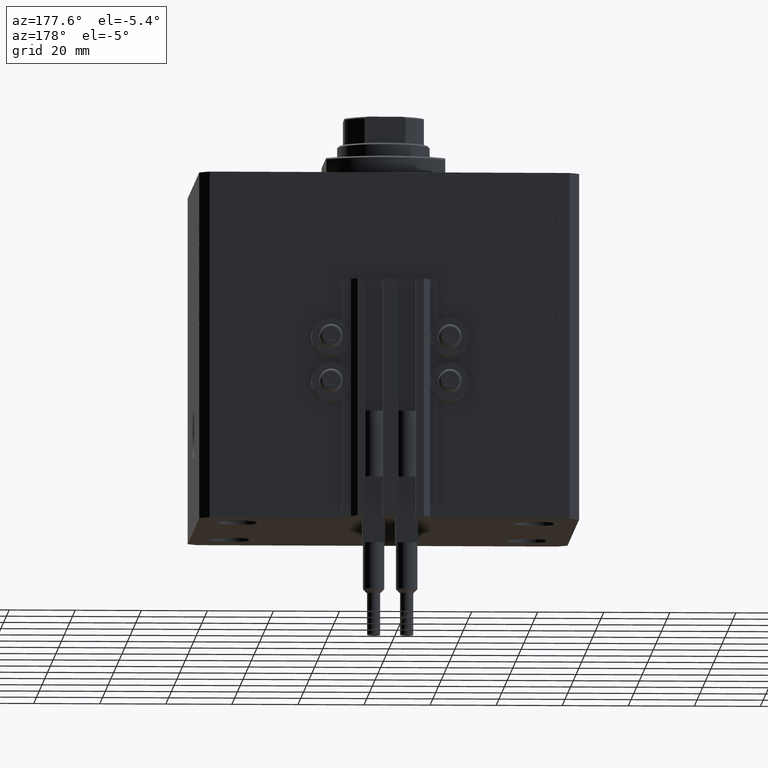
[diagram: clean part render]
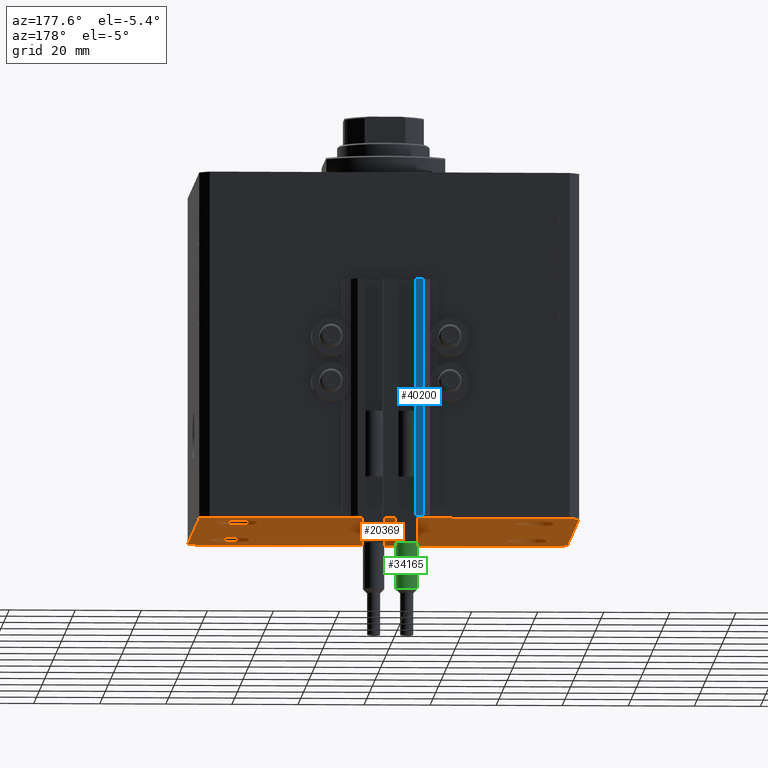
[diagram: same view with three faces highlighted in distinct colors, each labeled with its STEP entity id]
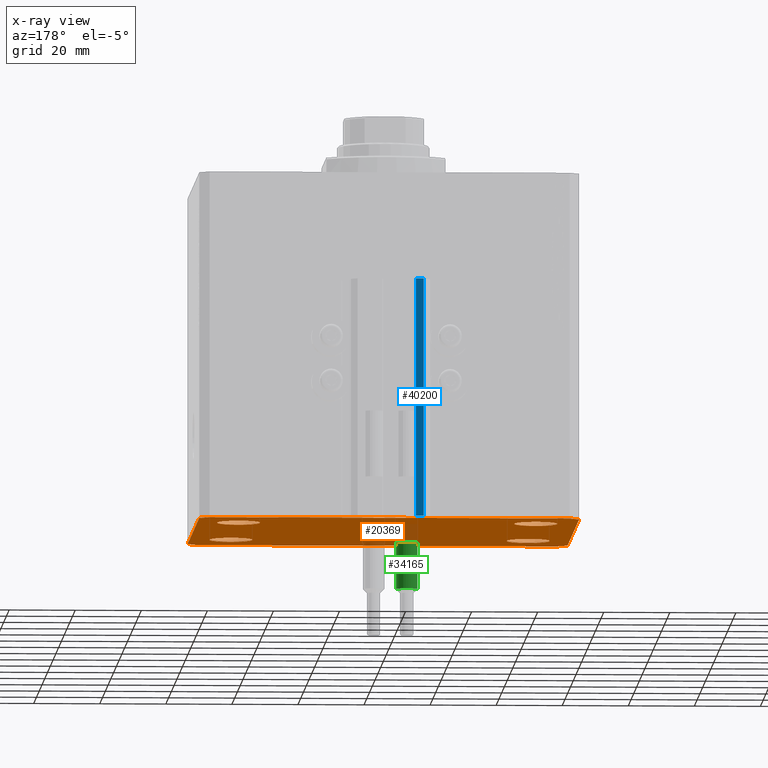
[diagram: x-ray of the same camera — body ghosted, the three highlighted faces saturated]
A machine part, auxiliary view with three faces highlighted in distinct colors.
The next image is the same camera in x-ray (body ghosted, the three faces saturated) — at least one of them is partly hidden behind the body in this view.
Their STEP definitions:

[orange] entity #20369 — the highlighted planar face has unit normal (0, 0, 1).
#649 = CIRCLE ( 'NONE', #22397, 6.499999999999999112 ) ;
#689 = VERTEX_POINT ( 'NONE', #3600 ) ;
#905 = VECTOR ( 'NONE', #27359, 1000.000000000000000 ) ;
#933 = VERTEX_POINT ( 'NONE', #44760 ) ;
#1782 = LINE ( 'NONE', #35787, #29300 ) ;
#2308 = VERTEX_POINT ( 'NONE', #40476 ) ;
#2411 = DIRECTION ( 'NONE',  ( -0.000000000000000000, -0.000000000000000000, -1.000000000000000000 ) ) ;
#2746 = DIRECTION ( 'NONE',  ( -1.000000000000000000, -2.546383084002638829E-16, 0.000000000000000000 ) ) ;
#2833 = DIRECTION ( 'NONE',  ( -0.7071067811865369146, 0.7071067811865581199, 0.000000000000000000 ) ) ;
#3341 = DIRECTION ( 'NONE',  ( 1.000000000000000000, 1.273191542001326317E-16, 0.000000000000000000 ) ) ;
#3399 = CARTESIAN_POINT ( 'NONE',  ( -54.49999999999999289, 45.00000000000000000, -105.0000000000000000 ) ) ;
#3600 = CARTESIAN_POINT ( 'NONE',  ( 57.50000000000055422, 41.99999999999997868, -105.0000000000000000 ) ) ;
#3942 = FACE_BOUND ( 'NONE', #27460, .T. ) ;
#4056 = CARTESIAN_POINT ( 'NONE',  ( -54.50000000000000711, -45.00000000000000000, -105.0000000000000000 ) ) ;
#4071 = EDGE_CURVE ( 'NONE', #42867, #18524, #10925, .T. ) ;
#4172 = VERTEX_POINT ( 'NONE', #41011 ) ;
#4384 = CARTESIAN_POINT ( 'NONE',  ( 51.50000000000000000, 27.49999999999999289, -105.0000000000000000 ) ) ;
#5007 = ORIENTED_EDGE ( 'NONE', *, *, #38904, .F. ) ;
#5122 = CARTESIAN_POINT ( 'NONE',  ( -57.50000000000000711, -42.00000000000000711, -105.0000000000000000 ) ) ;
#5576 = DIRECTION ( 'NONE',  ( 1.000000000000000000, 0.000000000000000000, 0.000000000000000000 ) ) ;
#5982 = ORIENTED_EDGE ( 'NONE', *, *, #36238, .F. ) ;
#6078 = CIRCLE ( 'NONE', #30913, 6.499999999999999112 ) ;
#6098 = EDGE_CURVE ( 'NONE', #933, #20827, #39494, .T. ) ;
#6519 = EDGE_CURVE ( 'NONE', #15836, #47928, #13359, .T. ) ;
#6578 = DIRECTION ( 'NONE',  ( -0.7071067811865483499, -0.7071067811865466846, 0.000000000000000000 ) ) ;
#6706 = ORIENTED_EDGE ( 'NONE', *, *, #4071, .F. ) ;
#7108 = PLANE ( 'NONE',  #19513 ) ;
#7572 = DIRECTION ( 'NONE',  ( 1.000000000000000000, 0.000000000000000000, 0.000000000000000000 ) ) ;
#7632 = CIRCLE ( 'NONE', #34780, 6.499999999999999112 ) ;
#8060 = FACE_BOUND ( 'NONE', #26869, .T. ) ;
#8914 = CIRCLE ( 'NONE', #32219, 6.499999999999999112 ) ;
#9060 = VERTEX_POINT ( 'NONE', #24660 ) ;
#10397 = ORIENTED_EDGE ( 'NONE', *, *, #31570, .F. ) ;
#10560 = ORIENTED_EDGE ( 'NONE', *, *, #6519, .F. ) ;
#10925 = CIRCLE ( 'NONE', #38080, 6.499999999999999112 ) ;
#11130 = DIRECTION ( 'NONE',  ( 1.000000000000000000, 0.000000000000000000, 0.000000000000000000 ) ) ;
#11470 = FACE_BOUND ( 'NONE', #43517, .T. ) ;
#12171 = DIRECTION ( 'NONE',  ( -0.000000000000000000, -0.000000000000000000, -1.000000000000000000 ) ) ;
#12376 = CARTESIAN_POINT ( 'NONE',  ( 44.99999999999998579, -27.50000000000000355, -105.0000000000000000 ) ) ;
#12461 = EDGE_CURVE ( 'NONE', #689, #2308, #13770, .T. ) ;
#12739 = DIRECTION ( 'NONE',  ( -0.000000000000000000, -0.000000000000000000, -1.000000000000000000 ) ) ;
#13305 = VERTEX_POINT ( 'NONE', #4384 ) ;
#13359 = CIRCLE ( 'NONE', #34293, 6.499999999999999112 ) ;
#13411 = ORIENTED_EDGE ( 'NONE', *, *, #36681, .F. ) ;
#13740 = CARTESIAN_POINT ( 'NONE',  ( -38.50000000000000000, 27.49999999999999645, -105.0000000000000000 ) ) ;
#13744 = EDGE_CURVE ( 'NONE', #18524, #42867, #8914, .T. ) ;
#13770 = LINE ( 'NONE', #39529, #40690 ) ;
#15351 = DIRECTION ( 'NONE',  ( 0.000000000000000000, 0.000000000000000000, 1.000000000000000000 ) ) ;
#15369 = CARTESIAN_POINT ( 'NONE',  ( 38.50000000000000000, 27.49999999999999289, -105.0000000000000000 ) ) ;
#15836 = VERTEX_POINT ( 'NONE', #28430 ) ;
#16257 = DIRECTION ( 'NONE',  ( 1.000000000000000000, 0.000000000000000000, 0.000000000000000000 ) ) ;
#17125 = DIRECTION ( 'NONE',  ( -0.000000000000000000, -0.000000000000000000, -1.000000000000000000 ) ) ;
#18394 = EDGE_CURVE ( 'NONE', #2308, #32443, #1782, .T. ) ;
#18524 = VERTEX_POINT ( 'NONE', #44908 ) ;
#19513 = AXIS2_PLACEMENT_3D ( 'NONE', #36510, #15351, #47909 ) ;
#19608 = CARTESIAN_POINT ( 'NONE',  ( 57.50000000000000711, -41.99999999999998579, -105.0000000000000000 ) ) ;
#19933 = DIRECTION ( 'NONE',  ( 0.7071067811865491270, -0.7071067811865459074, 0.000000000000000000 ) ) ;
#20214 = EDGE_CURVE ( 'NONE', #38850, #4172, #46718, .T. ) ;
#20281 = ORIENTED_EDGE ( 'NONE', *, *, #13744, .F. ) ;
#20369 = ADVANCED_FACE ( 'NONE', ( #3942, #11470, #8060, #40391, #26528 ), #7108, .F. ) ;
#20767 = CARTESIAN_POINT ( 'NONE',  ( -44.99999999999998579, -27.50000000000000355, -105.0000000000000000 ) ) ;
#20827 = VERTEX_POINT ( 'NONE', #31568 ) ;
#20871 = CARTESIAN_POINT ( 'NONE',  ( 44.99999999999998579, -27.50000000000000355, -105.0000000000000000 ) ) ;
#21460 = CARTESIAN_POINT ( 'NONE',  ( 54.50000000000000711, -44.99999999999998579, -105.0000000000000000 ) ) ;
#21861 = LINE ( 'NONE', #36687, #34149 ) ;
#22142 = ORIENTED_EDGE ( 'NONE', *, *, #32039, .F. ) ;
#22397 = AXIS2_PLACEMENT_3D ( 'NONE', #44188, #30352, #37147 ) ;
#23236 = VECTOR ( 'NONE', #28532, 1000.000000000000000 ) ;
#23279 = EDGE_CURVE ( 'NONE', #43404, #36441, #24311, .T. ) ;
#23457 = EDGE_LOOP ( 'NONE', ( #45654, #10560 ) ) ;
#23565 = DIRECTION ( 'NONE',  ( -0.000000000000000000, -0.000000000000000000, -1.000000000000000000 ) ) ;
#24311 = CIRCLE ( 'NONE', #30531, 6.499999999999999112 ) ;
#24660 = CARTESIAN_POINT ( 'NONE',  ( -54.50000000000000711, -45.00000000000000000, -105.0000000000000000 ) ) ;
#24855 = DIRECTION ( 'NONE',  ( -0.000000000000000000, -0.000000000000000000, -1.000000000000000000 ) ) ;
#25683 = LINE ( 'NONE', #4056, #46410 ) ;
#25803 = DIRECTION ( 'NONE',  ( 1.000000000000000000, 0.000000000000000000, 0.000000000000000000 ) ) ;
#26045 = CARTESIAN_POINT ( 'NONE',  ( 45.00000000000000000, 27.49999999999999289, -105.0000000000000000 ) ) ;
#26528 = FACE_OUTER_BOUND ( 'NONE', #46039, .T. ) ;
#26645 = ORIENTED_EDGE ( 'NONE', *, *, #37499, .F. ) ;
#26869 = EDGE_LOOP ( 'NONE', ( #22142, #26645 ) ) ;
#26985 = ORIENTED_EDGE ( 'NONE', *, *, #12461, .F. ) ;
#27074 = CARTESIAN_POINT ( 'NONE',  ( -38.49999999999998579, -27.50000000000000355, -105.0000000000000000 ) ) ;
#27283 = ORIENTED_EDGE ( 'NONE', *, *, #20214, .F. ) ;
#27359 = DIRECTION ( 'NONE',  ( -2.478176394252581141E-16, -1.000000000000000000, 0.000000000000000000 ) ) ;
#27460 = EDGE_LOOP ( 'NONE', ( #6706, #20281 ) ) ;
#28430 = CARTESIAN_POINT ( 'NONE',  ( -51.50000000000000000, 27.49999999999999645, -105.0000000000000000 ) ) ;
#28532 = DIRECTION ( 'NONE',  ( 6.443258625056715108E-15, 1.000000000000000000, 0.000000000000000000 ) ) ;
#29300 = VECTOR ( 'NONE', #2746, 1000.000000000000000 ) ;
#29396 = EDGE_CURVE ( 'NONE', #32443, #933, #21861, .T. ) ;
#29596 = CARTESIAN_POINT ( 'NONE',  ( 54.50000000000000711, -44.99999999999998579, -105.0000000000000000 ) ) ;
#30352 = DIRECTION ( 'NONE',  ( -0.000000000000000000, -0.000000000000000000, -1.000000000000000000 ) ) ;
#30531 = AXIS2_PLACEMENT_3D ( 'NONE', #12376, #23565, #16257 ) ;
#30913 = AXIS2_PLACEMENT_3D ( 'NONE', #20871, #2411, #5576 ) ;
#31060 = VERTEX_POINT ( 'NONE', #15369 ) ;
#31522 = CARTESIAN_POINT ( 'NONE',  ( 38.49999999999998579, -27.50000000000000355, -105.0000000000000000 ) ) ;
#31555 = ORIENTED_EDGE ( 'NONE', *, *, #6098, .F. ) ;
#31568 = CARTESIAN_POINT ( 'NONE',  ( -57.50000000000000711, -42.00000000000000711, -105.0000000000000000 ) ) ;
#31570 = EDGE_CURVE ( 'NONE', #36441, #43404, #6078, .T. ) ;
#31963 = DIRECTION ( 'NONE',  ( 1.000000000000000000, 0.000000000000000000, 0.000000000000000000 ) ) ;
#32039 = EDGE_CURVE ( 'NONE', #13305, #31060, #7632, .T. ) ;
#32219 = AXIS2_PLACEMENT_3D ( 'NONE', #20767, #17125, #31963 ) ;
#32443 = VERTEX_POINT ( 'NONE', #3399 ) ;
#34007 = VECTOR ( 'NONE', #19933, 1000.000000000000114 ) ;
#34149 = VECTOR ( 'NONE', #6578, 1000.000000000000000 ) ;
#34293 = AXIS2_PLACEMENT_3D ( 'NONE', #36496, #24855, #25803 ) ;
#34762 = CARTESIAN_POINT ( 'NONE',  ( 45.00000000000000000, 27.49999999999999289, -105.0000000000000000 ) ) ;
#34780 = AXIS2_PLACEMENT_3D ( 'NONE', #26045, #40854, #7572 ) ;
#34989 = LINE ( 'NONE', #5122, #34007 ) ;
#35787 = CARTESIAN_POINT ( 'NONE',  ( 54.50000000000059686, 45.00000000000002842, -105.0000000000000000 ) ) ;
#35861 = ORIENTED_EDGE ( 'NONE', *, *, #23279, .F. ) ;
#36238 = EDGE_CURVE ( 'NONE', #20827, #9060, #34989, .T. ) ;
#36360 = EDGE_CURVE ( 'NONE', #47928, #15836, #649, .T. ) ;
#36441 = VERTEX_POINT ( 'NONE', #37622 ) ;
#36496 = CARTESIAN_POINT ( 'NONE',  ( -45.00000000000000000, 27.49999999999999645, -105.0000000000000000 ) ) ;
#36510 = CARTESIAN_POINT ( 'NONE',  ( 0.000000000000000000, 0.000000000000000000, -105.0000000000000000 ) ) ;
#36681 = EDGE_CURVE ( 'NONE', #9060, #38850, #25683, .T. ) ;
#36687 = CARTESIAN_POINT ( 'NONE',  ( -54.49999999999999289, 45.00000000000000000, -105.0000000000000000 ) ) ;
#37147 = DIRECTION ( 'NONE',  ( 1.000000000000000000, 0.000000000000000000, 0.000000000000000000 ) ) ;
#37499 = EDGE_CURVE ( 'NONE', #31060, #13305, #41803, .T. ) ;
#37622 = CARTESIAN_POINT ( 'NONE',  ( 51.49999999999998579, -27.50000000000000355, -105.0000000000000000 ) ) ;
#37924 = AXIS2_PLACEMENT_3D ( 'NONE', #34762, #12171, #39137 ) ;
#38080 = AXIS2_PLACEMENT_3D ( 'NONE', #44636, #12739, #11130 ) ;
#38550 = ORIENTED_EDGE ( 'NONE', *, *, #29396, .F. ) ;
#38850 = VERTEX_POINT ( 'NONE', #29596 ) ;
#38904 = EDGE_CURVE ( 'NONE', #4172, #689, #46972, .T. ) ;
#39137 = DIRECTION ( 'NONE',  ( 1.000000000000000000, 0.000000000000000000, 0.000000000000000000 ) ) ;
#39494 = LINE ( 'NONE', #46048, #905 ) ;
#39529 = CARTESIAN_POINT ( 'NONE',  ( 57.50000000000055422, 41.99999999999997868, -105.0000000000000000 ) ) ;
#40391 = FACE_BOUND ( 'NONE', #23457, .T. ) ;
#40476 = CARTESIAN_POINT ( 'NONE',  ( 54.50000000000059686, 45.00000000000002842, -105.0000000000000000 ) ) ;
#40690 = VECTOR ( 'NONE', #2833, 1000.000000000000000 ) ;
#40854 = DIRECTION ( 'NONE',  ( -0.000000000000000000, -0.000000000000000000, -1.000000000000000000 ) ) ;
#41011 = CARTESIAN_POINT ( 'NONE',  ( 57.50000000000000711, -41.99999999999998579, -105.0000000000000000 ) ) ;
#41327 = ORIENTED_EDGE ( 'NONE', *, *, #18394, .F. ) ;
#41803 = CIRCLE ( 'NONE', #37924, 6.499999999999999112 ) ;
#42867 = VERTEX_POINT ( 'NONE', #27074 ) ;
#43404 = VERTEX_POINT ( 'NONE', #31522 ) ;
#43517 = EDGE_LOOP ( 'NONE', ( #10397, #35861 ) ) ;
#43794 = DIRECTION ( 'NONE',  ( 0.7071067811865483499, 0.7071067811865466846, 0.000000000000000000 ) ) ;
#44188 = CARTESIAN_POINT ( 'NONE',  ( -45.00000000000000000, 27.49999999999999645, -105.0000000000000000 ) ) ;
#44636 = CARTESIAN_POINT ( 'NONE',  ( -44.99999999999998579, -27.50000000000000355, -105.0000000000000000 ) ) ;
#44760 = CARTESIAN_POINT ( 'NONE',  ( -57.49999999999998579, 42.00000000000000711, -105.0000000000000000 ) ) ;
#44908 = CARTESIAN_POINT ( 'NONE',  ( -51.49999999999998579, -27.50000000000000355, -105.0000000000000000 ) ) ;
#45654 = ORIENTED_EDGE ( 'NONE', *, *, #36360, .F. ) ;
#45889 = VECTOR ( 'NONE', #43794, 1000.000000000000000 ) ;
#46039 = EDGE_LOOP ( 'NONE', ( #41327, #26985, #5007, #27283, #13411, #5982, #31555, #38550 ) ) ;
#46048 = CARTESIAN_POINT ( 'NONE',  ( -57.49999999999998579, 42.00000000000000711, -105.0000000000000000 ) ) ;
#46410 = VECTOR ( 'NONE', #3341, 1000.000000000000000 ) ;
#46718 = LINE ( 'NONE', #21460, #45889 ) ;
#46972 = LINE ( 'NONE', #19608, #23236 ) ;
#47909 = DIRECTION ( 'NONE',  ( 1.000000000000000000, 0.000000000000000000, -0.000000000000000000 ) ) ;
#47928 = VERTEX_POINT ( 'NONE', #13740 ) ;

[blue] entity #40200 — the highlighted planar face has unit normal (0, 1, 0).
#2010 = DIRECTION ( 'NONE',  ( -1.000000000000000000, 0.000000000000000000, 0.000000000000000000 ) ) ;
#2512 = LINE ( 'NONE', #47436, #22402 ) ;
#5712 = DIRECTION ( 'NONE',  ( 0.000000000000000000, 1.000000000000000000, -0.000000000000000000 ) ) ;
#6157 = DIRECTION ( 'NONE',  ( -1.000000000000000000, 0.000000000000000000, 0.000000000000000000 ) ) ;
#6850 = VERTEX_POINT ( 'NONE', #11540 ) ;
#7567 = VERTEX_POINT ( 'NONE', #30616 ) ;
#11540 = CARTESIAN_POINT ( 'NONE',  ( -10.00000000000000000, 52.99999999999999289, -105.0000000000000000 ) ) ;
#11700 = CARTESIAN_POINT ( 'NONE',  ( -7.650000000000002132, 52.99999999999999289, -33.00000000000000000 ) ) ;
#11781 = EDGE_CURVE ( 'NONE', #7567, #19569, #28642, .T. ) ;
#11816 = CARTESIAN_POINT ( 'NONE',  ( -7.650000000000002132, 52.99999999999999289, -105.0000000000000000 ) ) ;
#14302 = VECTOR ( 'NONE', #21103, 1000.000000000000000 ) ;
#15035 = CARTESIAN_POINT ( 'NONE',  ( -10.00000000000000000, 52.99999999999999289, -105.0000000000000000 ) ) ;
#15712 = ORIENTED_EDGE ( 'NONE', *, *, #16121, .T. ) ;
#16121 = EDGE_CURVE ( 'NONE', #6850, #29907, #44653, .T. ) ;
#16871 = DIRECTION ( 'NONE',  ( 0.000000000000000000, 0.000000000000000000, 1.000000000000000000 ) ) ;
#19569 = VERTEX_POINT ( 'NONE', #11700 ) ;
#21103 = DIRECTION ( 'NONE',  ( 0.000000000000000000, 0.000000000000000000, 1.000000000000000000 ) ) ;
#22402 = VECTOR ( 'NONE', #6157, 1000.000000000000000 ) ;
#22690 = ORIENTED_EDGE ( 'NONE', *, *, #32885, .F. ) ;
#23028 = DIRECTION ( 'NONE',  ( 0.000000000000000000, 0.000000000000000000, 1.000000000000000000 ) ) ;
#27810 = FACE_OUTER_BOUND ( 'NONE', #29583, .T. ) ;
#28311 = CARTESIAN_POINT ( 'NONE',  ( -7.650000000000002132, 52.99999999999999289, -105.0000000000000000 ) ) ;
#28642 = LINE ( 'NONE', #43428, #14302 ) ;
#29538 = CARTESIAN_POINT ( 'NONE',  ( -10.00000000000000000, 52.99999999999999289, -33.00000000000000000 ) ) ;
#29583 = EDGE_LOOP ( 'NONE', ( #22690, #39174, #31482, #15712 ) ) ;
#29907 = VERTEX_POINT ( 'NONE', #29538 ) ;
#30616 = CARTESIAN_POINT ( 'NONE',  ( -7.650000000000002132, 52.99999999999999289, -105.0000000000000000 ) ) ;
#31482 = ORIENTED_EDGE ( 'NONE', *, *, #35993, .T. ) ;
#32885 = EDGE_CURVE ( 'NONE', #19569, #29907, #2512, .T. ) ;
#35059 = LINE ( 'NONE', #11816, #36348 ) ;
#35993 = EDGE_CURVE ( 'NONE', #7567, #6850, #35059, .T. ) ;
#36348 = VECTOR ( 'NONE', #2010, 1000.000000000000000 ) ;
#39174 = ORIENTED_EDGE ( 'NONE', *, *, #11781, .F. ) ;
#40200 = ADVANCED_FACE ( 'NONE', ( #27810 ), #46742, .T. ) ;
#42420 = VECTOR ( 'NONE', #23028, 1000.000000000000000 ) ;
#43428 = CARTESIAN_POINT ( 'NONE',  ( -7.650000000000002132, 52.99999999999999289, -105.0000000000000000 ) ) ;
#44195 = AXIS2_PLACEMENT_3D ( 'NONE', #28311, #5712, #16871 ) ;
#44653 = LINE ( 'NONE', #15035, #42420 ) ;
#46742 = PLANE ( 'NONE',  #44195 ) ;
#47436 = CARTESIAN_POINT ( 'NONE',  ( -7.650000000000002132, 52.99999999999999289, -33.00000000000000000 ) ) ;

[green] entity #34165 — the highlighted cylindrical surface (edge-blend (fillet) strip) has radius 3.25 mm, axis along (-0, -0, 1).
#487 = CARTESIAN_POINT ( 'NONE',  ( 0.000000000000000000, 0.000000000000000000, 40.00000000000000000 ) ) ;
#1112 = DIRECTION ( 'NONE',  ( 1.000000000000000000, 0.000000000000000000, 0.000000000000000000 ) ) ;
#1345 = VERTEX_POINT ( 'NONE', #20507 ) ;
#1358 = DIRECTION ( 'NONE',  ( 0.000000000000000000, 0.000000000000000000, 1.000000000000000000 ) ) ;
#1381 = AXIS2_PLACEMENT_3D ( 'NONE', #28411, #46849, #42966 ) ;
#1462 = VERTEX_POINT ( 'NONE', #47922 ) ;
#3432 = CARTESIAN_POINT ( 'NONE',  ( 2.883140648667699146, -1.500000000000000000, 40.00000000000000000 ) ) ;
#4662 = VERTEX_POINT ( 'NONE', #3432 ) ;
#4666 = CIRCLE ( 'NONE', #6242, 3.250000000000000444 ) ;
#4825 = AXIS2_PLACEMENT_3D ( 'NONE', #26391, #5008, #1112 ) ;
#4943 = LINE ( 'NONE', #42090, #15959 ) ;
#5008 = DIRECTION ( 'NONE',  ( 0.000000000000000000, 0.000000000000000000, -1.000000000000000000 ) ) ;
#6014 = LINE ( 'NONE', #46813, #17454 ) ;
#6242 = AXIS2_PLACEMENT_3D ( 'NONE', #12443, #16084, #27994 ) ;
#7473 = CARTESIAN_POINT ( 'NONE',  ( -2.883140648667699146, -1.500000000000000000, 40.00000000000000000 ) ) ;
#8403 = CARTESIAN_POINT ( 'NONE',  ( 0.000000000000000000, 0.000000000000000000, 40.00000000000000000 ) ) ;
#9946 = ORIENTED_EDGE ( 'NONE', *, *, #13433, .T. ) ;
#10411 = VERTEX_POINT ( 'NONE', #19708 ) ;
#10415 = FACE_OUTER_BOUND ( 'NONE', #15573, .T. ) ;
#12443 = CARTESIAN_POINT ( 'NONE',  ( 0.000000000000000000, 0.000000000000000000, 40.00000000000000000 ) ) ;
#13433 = EDGE_CURVE ( 'NONE', #1345, #10411, #6014, .T. ) ;
#15307 = DIRECTION ( 'NONE',  ( 1.000000000000000000, 0.000000000000000000, 0.000000000000000000 ) ) ;
#15573 = EDGE_LOOP ( 'NONE', ( #16947, #21913, #9946, #26020, #29640, #46012 ) ) ;
#15959 = VECTOR ( 'NONE', #23875, 1000.000000000000000 ) ;
#16084 = DIRECTION ( 'NONE',  ( 0.000000000000000000, 0.000000000000000000, 1.000000000000000000 ) ) ;
#16181 = AXIS2_PLACEMENT_3D ( 'NONE', #8403, #1358, #27118 ) ;
#16930 = EDGE_CURVE ( 'NONE', #1462, #32307, #4943, .T. ) ;
#16947 = ORIENTED_EDGE ( 'NONE', *, *, #16930, .F. ) ;
#17185 = DIRECTION ( 'NONE',  ( -0.000000000000000000, -0.000000000000000000, -1.000000000000000000 ) ) ;
#17454 = VECTOR ( 'NONE', #17185, 1000.000000000000000 ) ;
#19708 = CARTESIAN_POINT ( 'NONE',  ( -3.250000000000000444, 0.000000000000000000, 40.00000000000000000 ) ) ;
#20507 = CARTESIAN_POINT ( 'NONE',  ( -3.250000000000000444, 0.000000000000000000, 53.99999999999998579 ) ) ;
#20961 = VERTEX_POINT ( 'NONE', #7473 ) ;
#21913 = ORIENTED_EDGE ( 'NONE', *, *, #45989, .T. ) ;
#22359 = DIRECTION ( 'NONE',  ( 0.000000000000000000, 0.000000000000000000, 1.000000000000000000 ) ) ;
#22368 = CIRCLE ( 'NONE', #42538, 3.250000000000000444 ) ;
#23875 = DIRECTION ( 'NONE',  ( -0.000000000000000000, -0.000000000000000000, -1.000000000000000000 ) ) ;
#26020 = ORIENTED_EDGE ( 'NONE', *, *, #36723, .T. ) ;
#26391 = CARTESIAN_POINT ( 'NONE',  ( 0.000000000000000000, 0.000000000000000000, 53.99999999999998579 ) ) ;
#27118 = DIRECTION ( 'NONE',  ( 1.000000000000000000, 0.000000000000000000, 0.000000000000000000 ) ) ;
#27994 = DIRECTION ( 'NONE',  ( 1.000000000000000000, 0.000000000000000000, 0.000000000000000000 ) ) ;
#28411 = CARTESIAN_POINT ( 'NONE',  ( 0.000000000000000000, 0.000000000000000000, 56.00000000000000000 ) ) ;
#29071 = EDGE_CURVE ( 'NONE', #4662, #32307, #4666, .T. ) ;
#29640 = ORIENTED_EDGE ( 'NONE', *, *, #31397, .T. ) ;
#31397 = EDGE_CURVE ( 'NONE', #20961, #4662, #22368, .T. ) ;
#32307 = VERTEX_POINT ( 'NONE', #46891 ) ;
#32791 = CIRCLE ( 'NONE', #4825, 3.250000000000000444 ) ;
#34165 = ADVANCED_FACE ( 'NONE', ( #10415 ), #36162, .T. ) ;
#36162 = CYLINDRICAL_SURFACE ( 'NONE', #1381, 3.250000000000000444 ) ;
#36723 = EDGE_CURVE ( 'NONE', #10411, #20961, #47988, .T. ) ;
#42090 = CARTESIAN_POINT ( 'NONE',  ( 3.250000000000000444, 3.980102097228898231E-16, 56.00000000000000000 ) ) ;
#42538 = AXIS2_PLACEMENT_3D ( 'NONE', #487, #22359, #15307 ) ;
#42966 = DIRECTION ( 'NONE',  ( -1.000000000000000000, 0.000000000000000000, 0.000000000000000000 ) ) ;
#45989 = EDGE_CURVE ( 'NONE', #1462, #1345, #32791, .T. ) ;
#46012 = ORIENTED_EDGE ( 'NONE', *, *, #29071, .T. ) ;
#46813 = CARTESIAN_POINT ( 'NONE',  ( -3.250000000000000444, 0.000000000000000000, 56.00000000000000000 ) ) ;
#46849 = DIRECTION ( 'NONE',  ( -0.000000000000000000, -0.000000000000000000, -1.000000000000000000 ) ) ;
#46891 = CARTESIAN_POINT ( 'NONE',  ( 3.250000000000000444, 3.980102097228898231E-16, 40.00000000000000000 ) ) ;
#47922 = CARTESIAN_POINT ( 'NONE',  ( 3.250000000000000444, 3.980102097228898231E-16, 53.99999999999998579 ) ) ;
#47988 = CIRCLE ( 'NONE', #16181, 3.250000000000000444 ) ;